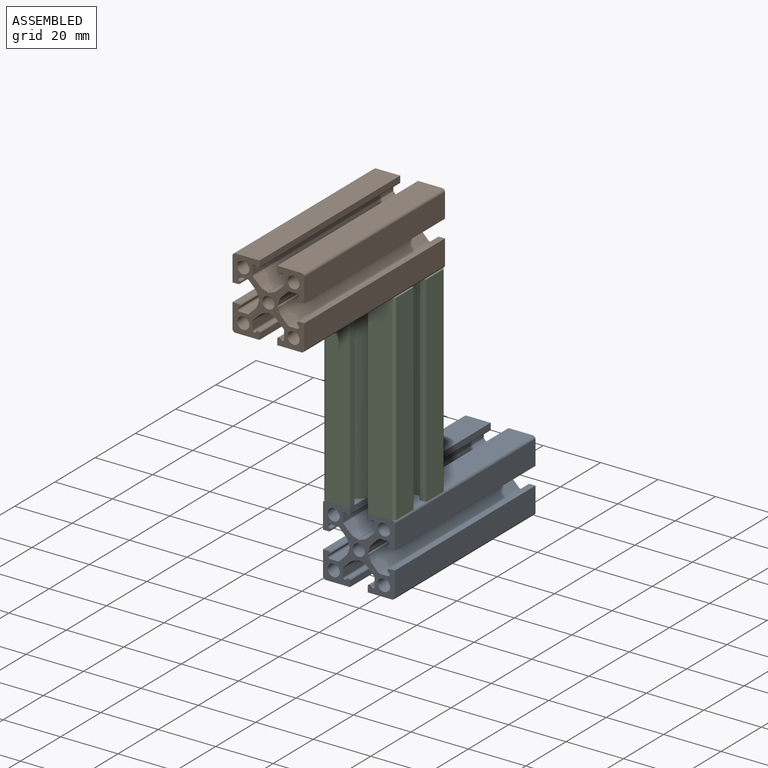
[diagram: assembled view]
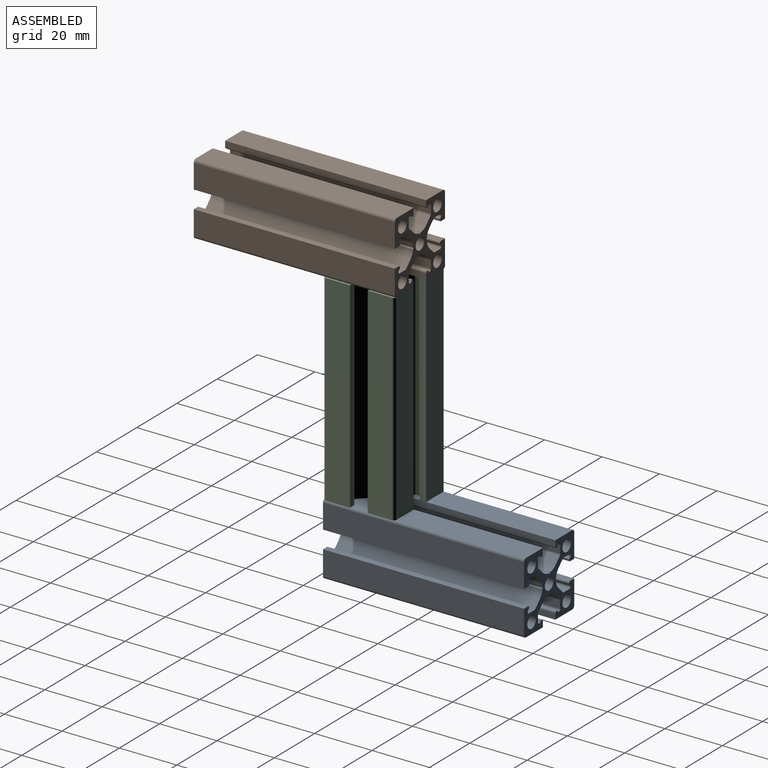
[diagram: assembled view, second angle]
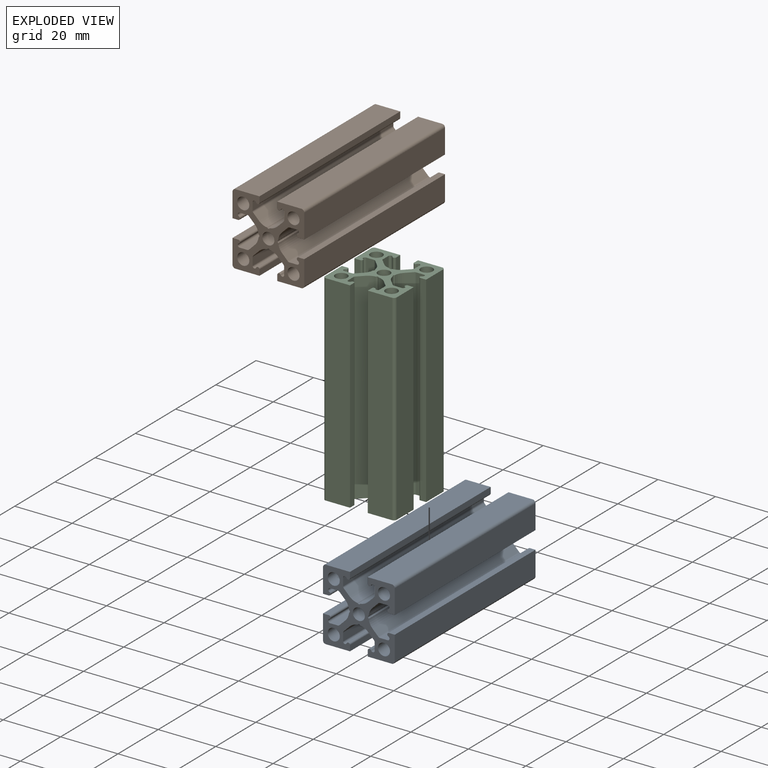
[diagram: exploded view]
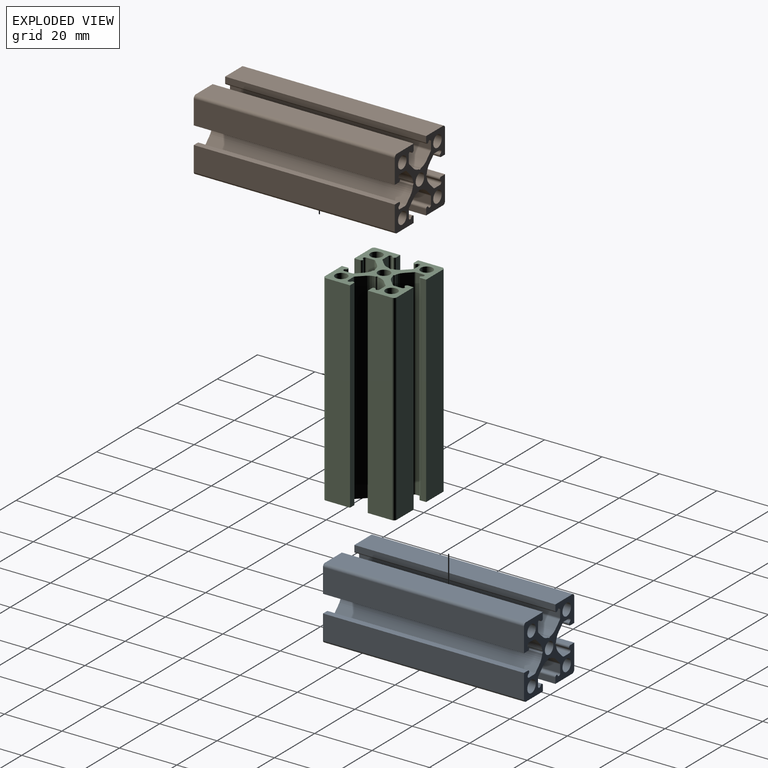
[diagram: exploded view, second angle]
ASSEMBLY  parts=3 mates=6
PART A: 79 faces, bbox 25x25x70 mm
  f0: cylinder r=2.1mm len=70mm, axis (0,0,-1), area 923.6mm2, adj f77,f78
  f1: cylinder r=2.1mm len=70mm, axis (0,0,-1), area 923.6mm2, adj f77,f78
  f2: cylinder r=2.1mm len=70mm, axis (0,0,-1), area 923.6mm2, adj f77,f78
  f3: cylinder r=2.1mm len=70mm, axis (0,0,-1), area 923.6mm2, adj f77,f78
  f4: cylinder r=2.1mm len=70mm, axis (0,0,-1), area 923.6mm2, adj f77,f78
  f5: cylinder r=0.6mm len=70mm, axis (0,0,-1), area 115mm2, adj f71,f72,f77,f78
  f6: cylinder r=0.5mm len=70mm, axis (0,0,-1), area 76.8mm2, adj f66,f67,f77,f78
  f7: cylinder r=0.6mm len=70mm, axis (0,0,-1), area 115mm2, adj f61,f62,f77,f78
  f8: cylinder r=0.65mm len=70mm, axis (0,0,-1), area 124.6mm2, adj f37,f38,f77,f78
  f9: cylinder r=0.65mm len=70mm, axis (0,0,-1), area 124.6mm2, adj f28,f29,f77,f78
  f10: cylinder r=0.6mm len=70mm, axis (0,0,-1), area 115mm2, adj f11,f76,f77,f78
  f11: cylinder r=0.65mm len=70mm, axis (0,0,-1), area 124.6mm2, adj f10,f12,f77,f78
  f12: plane 70x2.68mm, normal (-1,0,0), area 187.5mm2, adj f11,f13,f77,f78
  f13: cylinder r=0.8mm len=70mm, axis (0,0,-1), area 44mm2, adj f12,f14,f77,f78
  f14: plane 70x2.02mm, normal (-0.71,0.71,0), area 200.2mm2, adj f13,f15,f77,f78
  f15: cylinder r=4.59mm len=70mm, axis (0,0,-1), area 221mm2, adj f14,f16,f77,f78
  f16: cylinder r=0.5mm len=70mm, axis (0,0,-1), area 76.8mm2, adj f15,f17,f77,f78
  f17: cylinder r=4.59mm len=70mm, axis (0,0,-1), area 221mm2, adj f16,f18,f77,f78
  f18: plane 70x2.02mm, normal (0.71,0.71,0), area 200.2mm2, adj f17,f19,f77,f78
  f19: cylinder r=0.8mm len=70mm, axis (0,0,-1), area 44mm2, adj f18,f20,f77,f78
  f20: plane 70x2.68mm, normal (1,0,0), area 187.5mm2, adj f19,f21,f77,f78
  f21: cylinder r=0.65mm len=70mm, axis (0,0,-1), area 124.6mm2, adj f20,f22,f77,f78
  f22: cylinder r=0.6mm len=70mm, axis (0,0,-1), area 115mm2, adj f21,f23,f77,f78
  f23: plane 70x2mm, normal (1,0,0), area 140mm2, adj f22,f24,f77,f78
  f24: plane 70x8.4mm, normal (0,1,0), area 588mm2, adj f23,f25,f77,f78
  f25: cylinder r=1mm len=70mm, axis (0,0,-1), area 110mm2, adj f24,f26,f77,f78
  f26: plane 70x8.4mm, normal (-1,0,0), area 588mm2, adj f25,f27,f77,f78
  f27: plane 70x2mm, normal (0,-1,0), area 140mm2, adj f26,f28,f77,f78
  f28: cylinder r=0.6mm len=70mm, axis (0,0,-1), area 115mm2, adj f9,f27,f77,f78
  f29: plane 70x2.68mm, normal (0,-1,0), area 187.5mm2, adj f9,f30,f77,f78
  f30: cylinder r=0.8mm len=70mm, axis (0,0,-1), area 44mm2, adj f29,f31,f77,f78
  f31: plane 70x2.02mm, normal (-0.71,-0.71,0), area 200.2mm2, adj f30,f32,f77,f78
  f32: cylinder r=4.59mm len=70mm, axis (0,0,-1), area 221mm2, adj f31,f33,f77,f78
  f33: cylinder r=0.5mm len=70mm, axis (0,0,-1), area 76.8mm2, adj f32,f34,f77,f78
  f34: cylinder r=4.59mm len=70mm, axis (0,0,-1), area 221mm2, adj f33,f35,f77,f78
  f35: plane 70x2.02mm, normal (-0.71,0.71,0), area 200.2mm2, adj f34,f36,f77,f78
  f36: cylinder r=0.8mm len=70mm, axis (0,0,-1), area 44mm2, adj f35,f37,f77,f78
  f37: plane 70x2.68mm, normal (0,1,0), area 187.5mm2, adj f8,f36,f77,f78
  f38: cylinder r=0.6mm len=70mm, axis (0,0,-1), area 115mm2, adj f8,f39,f77,f78
  f39: plane 70x2mm, normal (0,1,0), area 140mm2, adj f38,f40,f77,f78
  f40: plane 70x8.4mm, normal (-1,0,0), area 588mm2, adj f39,f41,f77,f78
  f41: cylinder r=1mm len=70mm, axis (0,0,-1), area 110mm2, adj f40,f42,f77,f78
  f42: plane 70x8.4mm, normal (0,-1,0), area 588mm2, adj f41,f43,f77,f78
  f43: plane 70x2mm, normal (1,0,0), area 140mm2, adj f42,f44,f77,f78
  f44: cylinder r=0.6mm len=70mm, axis (0,0,-1), area 115mm2, adj f43,f45,f77,f78
  f45: cylinder r=0.65mm len=70mm, axis (0,0,-1), area 124.6mm2, adj f44,f46,f77,f78
  f46: plane 70x2.68mm, normal (1,0,0), area 187.5mm2, adj f45,f47,f77,f78
  f47: cylinder r=0.8mm len=70mm, axis (0,0,-1), area 44mm2, adj f46,f48,f77,f78
  f48: plane 70x2.02mm, normal (0.71,-0.71,0), area 200.2mm2, adj f47,f49,f77,f78
  f49: cylinder r=4.59mm len=70mm, axis (0,0,-1), area 221mm2, adj f48,f50,f77,f78
  f50: cylinder r=0.5mm len=70mm, axis (0,0,-1), area 76.8mm2, adj f49,f51,f77,f78
  f51: cylinder r=4.59mm len=70mm, axis (0,0,-1), area 221mm2, adj f50,f52,f77,f78
  f52: plane 70x2.02mm, normal (-0.71,-0.71,0), area 200.2mm2, adj f51,f53,f77,f78
  f53: cylinder r=0.8mm len=70mm, axis (0,0,-1), area 44mm2, adj f52,f54,f77,f78
  f54: plane 70x2.68mm, normal (-1,0,0), area 187.5mm2, adj f53,f55,f77,f78
  f55: cylinder r=0.65mm len=70mm, axis (0,0,-1), area 124.6mm2, adj f54,f56,f77,f78
  f56: cylinder r=0.6mm len=70mm, axis (0,0,-1), area 115mm2, adj f55,f57,f77,f78
  f57: plane 70x2mm, normal (-1,0,0), area 140mm2, adj f56,f58,f77,f78
  f58: plane 70x8.4mm, normal (0,-1,0), area 588mm2, adj f57,f59,f77,f78
  f59: cylinder r=1mm len=70mm, axis (0,0,-1), area 110mm2, adj f58,f60,f77,f78
  f60: plane 70x8.4mm, normal (1,0,0), area 588mm2, adj f59,f61,f77,f78
  f61: plane 70x2mm, normal (0,1,0), area 140mm2, adj f7,f60,f77,f78
  f62: cylinder r=0.65mm len=70mm, axis (0,0,-1), area 124.6mm2, adj f7,f63,f77,f78
  f63: plane 70x2.68mm, normal (0,1,0), area 187.5mm2, adj f62,f64,f77,f78
  f64: cylinder r=0.8mm len=70mm, axis (0,0,-1), area 44mm2, adj f63,f65,f77,f78
  f65: plane 70x2.02mm, normal (0.71,0.71,0), area 200.2mm2, adj f64,f66,f77,f78
  f66: cylinder r=4.59mm len=70mm, axis (0,0,-1), area 221mm2, adj f6,f65,f77,f78
  f67: cylinder r=4.59mm len=70mm, axis (0,0,-1), area 221mm2, adj f6,f68,f77,f78
  f68: plane 70x2.02mm, normal (0.71,-0.71,0), area 200.2mm2, adj f67,f69,f77,f78
  f69: cylinder r=0.8mm len=70mm, axis (0,0,-1), area 44mm2, adj f68,f70,f77,f78
  f70: plane 70x2.68mm, normal (0,-1,0), area 187.5mm2, adj f69,f71,f77,f78
  f71: cylinder r=0.65mm len=70mm, axis (0,0,-1), area 124.6mm2, adj f5,f70,f77,f78
  f72: plane 70x2mm, normal (0,-1,0), area 140mm2, adj f5,f73,f77,f78
  f73: plane 70x8.4mm, normal (1,0,0), area 588mm2, adj f72,f74,f77,f78
  f74: cylinder r=1mm len=70mm, axis (0,0,-1), area 110mm2, adj f73,f75,f77,f78
  f75: plane 70x8.4mm, normal (0,1,0), area 588mm2, adj f74,f76,f77,f78
  f76: plane 70x2mm, normal (-1,0,0), area 140mm2, adj f10,f75,f77,f78
  f77: plane 25x25mm, normal (0,0,1), area 251.9mm2, adj f0,f1,f2,f3,f4,f5,f6,f7
  f78: plane 25x25mm, normal (0,0,-1), area 251.9mm2, adj f0,f1,f2,f3,f4,f5,f6,f7
PART B: same geometry as A
PART C: same geometry as A
PLACE A rot(axis=(1,0,0),90deg) t=(60.74,550.17,-45.77)mm
PLACE B rot(axis=(-1,0,0),90deg) t=(60.74,-424.83,49.23)mm
PLACE C t=(60.74,62.67,-463.27)mm
MATE planar B.f24 <-> C.f4  axis (0,0,-1) through (53.44,40.17,36.73)mm
MATE planar A.f24 <-> C.f4  axis (0,0,1) through (53.44,85.17,-33.27)mm
MATE planar B.f4 <-> C.f24  axis (0,1,0) through (60.74,75.17,49.23)mm
MATE planar A.f4 <-> C.f58  axis (0,-1,0) through (60.74,50.17,-45.77)mm
MATE planar C.f40 <-> A.f26  axis (-1,0,0) through (48.24,55.37,1.73)mm
MATE planar B.f26 <-> C.f26  axis (-1,0,0) through (48.24,40.17,41.93)mm
